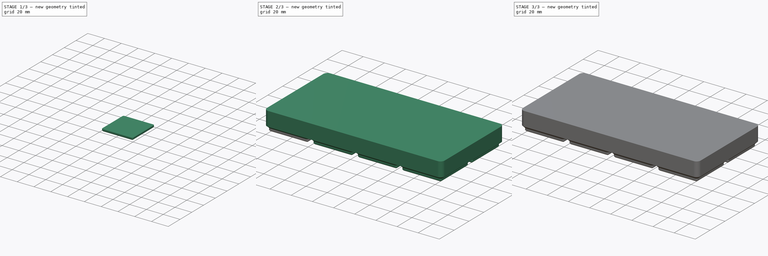
[diagram: build sequence overview — one tinted view per stage of 3, left to right]
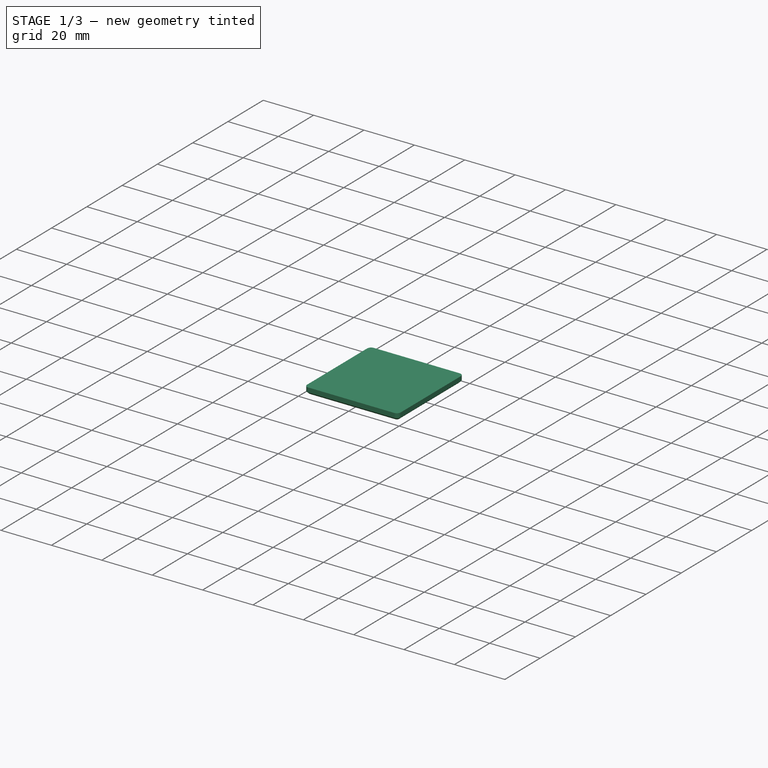
[diagram: stage 1 of 3 — iso view after this stage's code; geometry added in this stage tinted green]
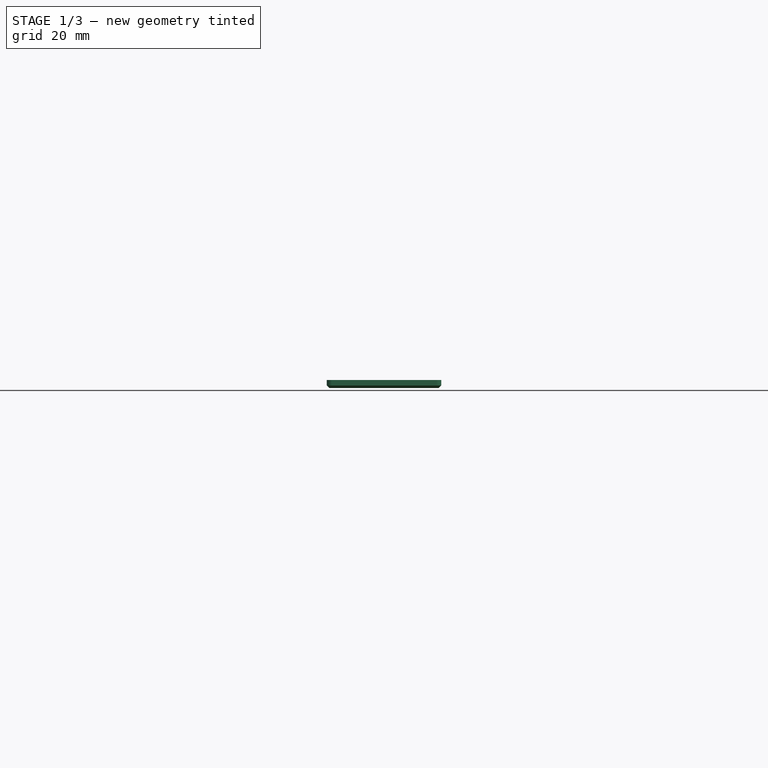
[diagram: stage 1 of 3 — front view after this stage's code; geometry added in this stage tinted green]
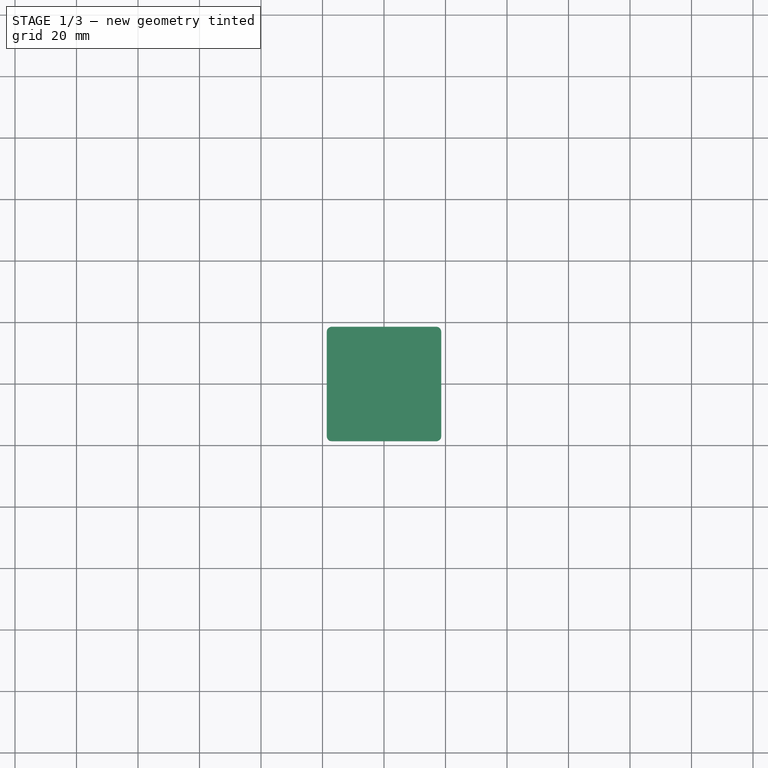
[diagram: stage 1 of 3 — top view after this stage's code; geometry added in this stage tinted green]
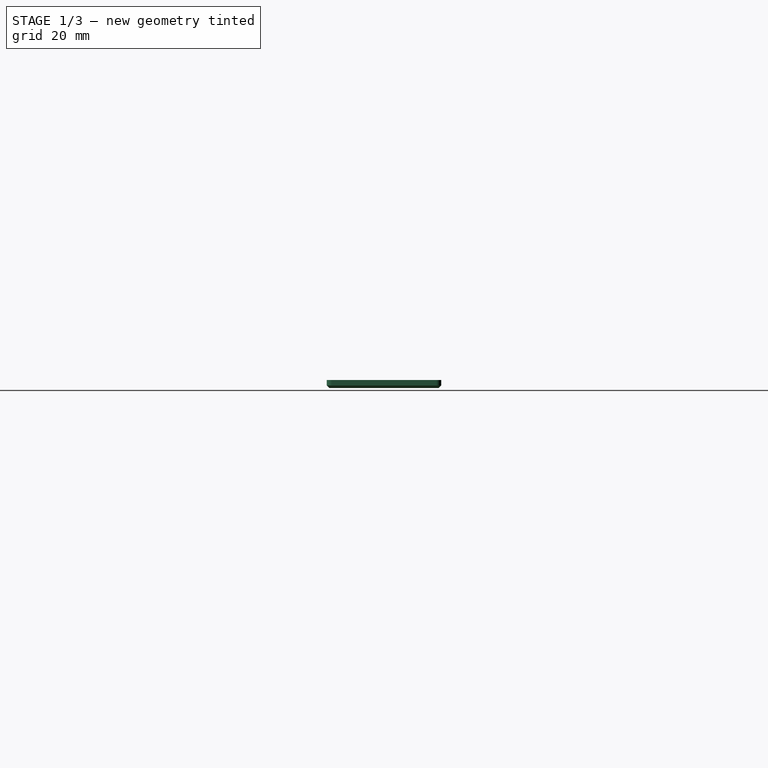
[diagram: stage 1 of 3 — right view after this stage's code; geometry added in this stage tinted green]
FCSTD DOCUMENT  (FreeCAD 1.1R20260223 (Git shallow))
Label: Gridfinity Magnifying Glasses
License: Creative Commons Attribution 4.0
objects: Sketcher::SketchObject×4, PartDesign::Pad×4, Part::Part2DObjectPython×3, App::Point×1, PartDesign::FeaturePython×1, PartDesign::Hole×1, PartDesign::Chamfer×1, PartDesign::Body×1
note: 32 computed .brp shape members not serialized (recipe doc carries the construction recipe); baked Part::Feature solids carry a one-line shape summary decoded from their .brp

FEATURE [App::Point] Origin002  label="Origin"
  Role = Origin
FEATURE [Sketcher::SketchObject] Sketch006
  ArcFitTolerance = 1e-06
  AttachmentSupport = -> [Origin]
  ExternalTypes = [0]
  FullyConstrained = true
  MakeInternals = false
  MapMode = 5
  expr: Constraints[10] = href(<<Tray>>.Width) * 42 - 16
  expr: Constraints[11] = href(<<Tray>>.Depth) * 42 - 16
  sketch-geometry (4):
    g0: Circle CenterX=-13 CenterY=-13 CenterZ=0 NormalX=0 NormalY=0 NormalZ=1 AngleXU=0 Radius=3.25
    g1: Circle CenterX=-13 CenterY=55 CenterZ=0 NormalX=0 NormalY=0 NormalZ=1 AngleXU=0 Radius=3.25
    g2: Circle CenterX=139 CenterY=55 CenterZ=0 NormalX=0 NormalY=0 NormalZ=1 AngleXU=0 Radius=3.25
    g3: Circle CenterX=139 CenterY=-13 CenterZ=0 NormalX=0 NormalY=0 NormalZ=1 AngleXU=0 Radius=3.25
  constraints (12):
    c: Equal(g2,g1)
    c: Equal(g1,g0)
    c: Equal(g0,g3)
    c: Diameter(g0) = 6.5
    c: Horizontal(g1,g2)
    c: Horizontal(g0,g3)
    c: Vertical(g1,g0)
    c: Vertical(g2,g3)
    c: DistanceY(g0,g-1) = 13
    c: DistanceX(g0,g-1) = 13
    c: DistanceX(g0,g3) = 152
    c: DistanceY(g0,g1) = 68
FEATURE [Sketcher::SketchObject] Sketch
  ArcFitTolerance = 1e-06
  AttachmentSupport = -> [XY_Plane]
  ExternalTypes = [0]
  FullyConstrained = true
  MakeInternals = false
  MapMode = 5
  sketch-geometry (10):
    g0: LineSegment StartX=-17.8 StartY=17 StartZ=0 EndX=-17.8 EndY=-17 EndZ=0
    g1: LineSegment StartX=-17 StartY=-17.8 StartZ=0 EndX=17 EndY=-17.8 EndZ=0
    g2: LineSegment StartX=17.8 StartY=-17 StartZ=0 EndX=17.8 EndY=17 EndZ=0
    g3: LineSegment StartX=17 StartY=17.8 StartZ=0 EndX=-17 EndY=17.8 EndZ=0
    g4: ArcOfCircle CenterX=-17 CenterY=17 CenterZ=0 NormalX=0 NormalY=0 NormalZ=1 AngleXU=0 Radius=0.8 StartAngle=1.5708 EndAngle=3.14159
    g5: ArcOfCircle CenterX=-17 CenterY=-17 CenterZ=0 NormalX=0 NormalY=0 NormalZ=1 AngleXU=0 Radius=0.8 StartAngle=3.14159 EndAngle=4.71239
    g6: ArcOfCircle CenterX=17 CenterY=-17 CenterZ=0 NormalX=0 NormalY=0 NormalZ=1 AngleXU=0 Radius=0.8 StartAngle=4.71239 EndAngle=6.28319
    g7: ArcOfCircle CenterX=17 CenterY=17 CenterZ=0 NormalX=0 NormalY=0 NormalZ=1 AngleXU=0 Radius=0.8 StartAngle=9.76e-14 EndAngle=1.5708
    g8: GeomPoint [constr] X=-17.8 Y=17.8 Z=0
    g9: GeomPoint [constr] X=17.8 Y=-17.8 Z=0
  constraints (23):
    c: Tangent(g0,g4) = -1.5708
    c: Tangent(g0,g5) = -1.5708
    c: Tangent(g1,g5) = -1.5708
    c: Tangent(g1,g6) = -1.5708
    c: Tangent(g2,g6) = -1.5708
    c: Tangent(g2,g7) = -1.5708
    c: Tangent(g3,g7) = -1.5708
    c: Tangent(g3,g4) = -1.5708
    c: Vertical(g0)
    c: Vertical(g2)
    c: Horizontal(g1)
    c: Horizontal(g3)
    c: Equal(g4,g5)
    c: Equal(g5,g6)
    c: Equal(g6,g7)
    c: PointOnObject(g8,g0)
    c: PointOnObject(g8,g3)
    c: PointOnObject(g9,g1)
    c: PointOnObject(g9,g2)
    c: Symmetric(g8,g9,g-1)
    c: Equal(g3,g2)
    c: DistanceY(g9,g8) = 35.6
    c: Diameter(g5) = 1.6
FEATURE [PartDesign::Pad] Pad  label="Base pad 1"
  Direction = (0,0,1)
  Length = 0.8
  Length2 = 10
  Profile = -> Sketch
  ReferenceAxis = -> Sketch [N_Axis]
  SideType = 0
  Suppressed = false
  TaperAngle = 45
  Type = 0
  Type2 = 0
FEATURE [PartDesign::Pad] Pad001  label="Base pad 2"
  BaseFeature = -> Pad
  Direction = (0,0,1)
  Length = 1.8
  Length2 = 10
  Profile = -> Pad [Edge3,Edge24,Edge22,Edge19,Edge16,Edge13,Edge10,Edge7]
  SideType = 0
  Suppressed = false
  Type = 0
  Type2 = 0
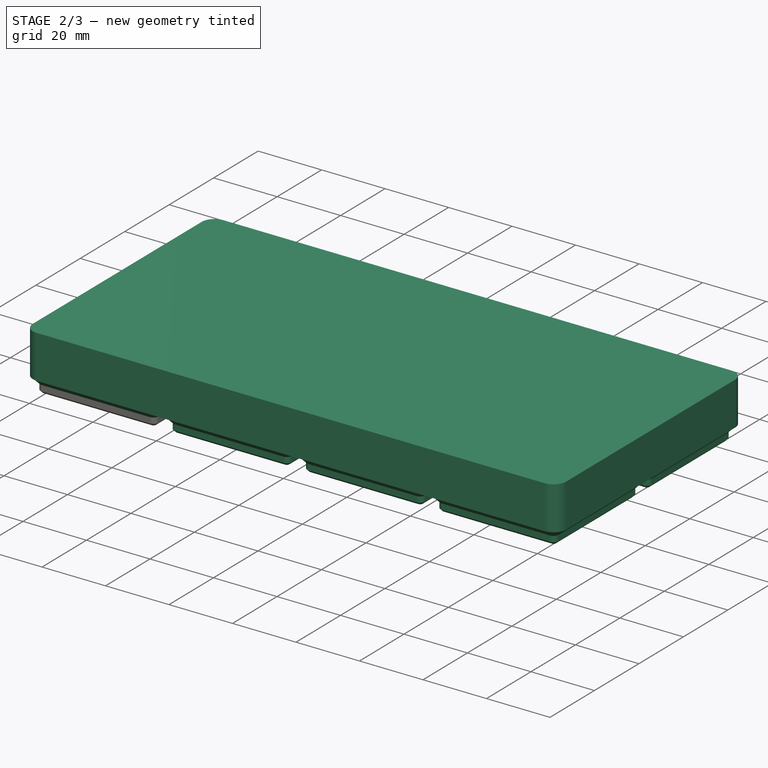
[diagram: stage 2 of 3 — iso view after this stage's code; geometry added in this stage tinted green]
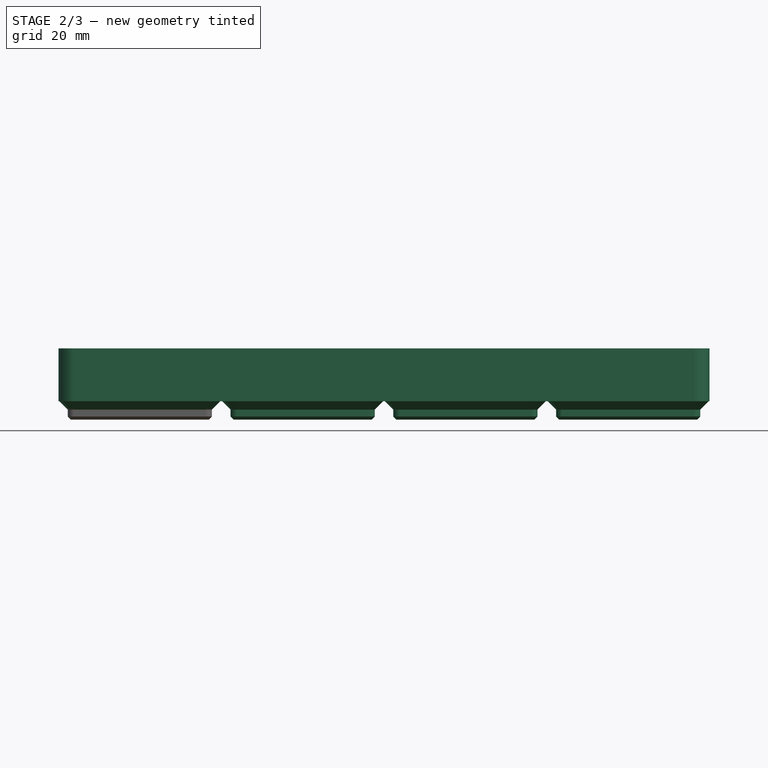
[diagram: stage 2 of 3 — front view after this stage's code; geometry added in this stage tinted green]
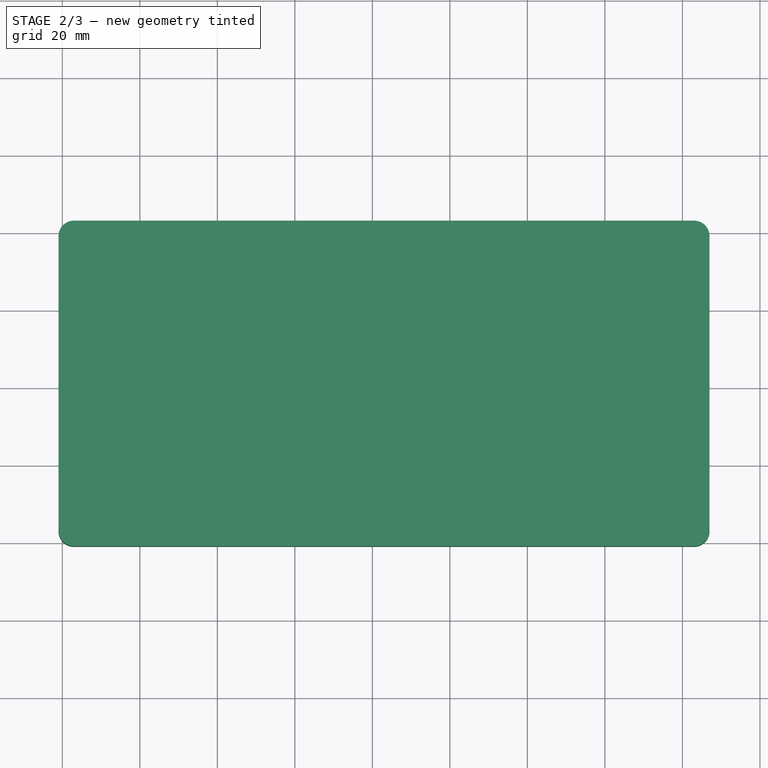
[diagram: stage 2 of 3 — top view after this stage's code; geometry added in this stage tinted green]
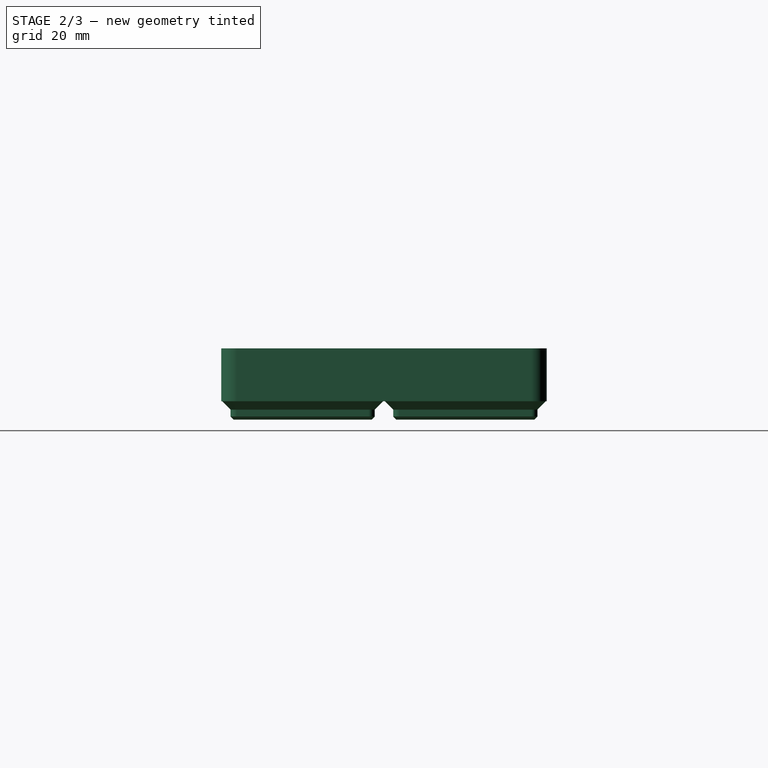
[diagram: stage 2 of 3 — right view after this stage's code; geometry added in this stage tinted green]
FEATURE [PartDesign::Pad] Pad002  label="Base pad 3"
  BaseFeature = -> Pad001
  Direction = (0,0,1)
  Length = 2.15
  Length2 = 10
  Profile = -> Pad001 [Edge16,Edge31,Edge32,Edge33,Edge34,Edge35,Edge36,Edge29]
  SideType = 0
  Suppressed = false
  TaperAngle = 45
  Type = 0
  Type2 = 0
FEATURE [Sketcher::SketchObject] Sketch001
  ArcFitTolerance = 1e-06
  AttachmentSupport = -> [Pad002]
  ExternalTypes = [0]
  FullyConstrained = true
  MakeInternals = false
  MapMode = 5
  Placement = pos=(0,0,4.75) rot=(0,0,1;0rad)
  expr: Constraints[23] = href(<<Tray>>.Width) * 42
  expr: Constraints[24] = href(<<Tray>>.Depth) * 42
  sketch-geometry (8):
    g0: ArcOfCircle CenterX=-17 CenterY=-17 CenterZ=0 NormalX=0 NormalY=0 NormalZ=1 AngleXU=0 Radius=4 StartAngle=3.14159 EndAngle=4.71239
    g1: LineSegment StartX=-21 StartY=-17 StartZ=0 EndX=-21 EndY=59 EndZ=0
    g2: LineSegment StartX=-17 StartY=-21 StartZ=0 EndX=143 EndY=-21 EndZ=0
    g3: ArcOfCircle CenterX=-17 CenterY=59 CenterZ=0 NormalX=0 NormalY=0 NormalZ=1 AngleXU=0 Radius=4 StartAngle=1.5708 EndAngle=3.14159
    g4: ArcOfCircle CenterX=143 CenterY=-17 CenterZ=0 NormalX=0 NormalY=0 NormalZ=1 AngleXU=0 Radius=4 StartAngle=4.71239 EndAngle=6.28319
    g5: LineSegment StartX=-17 StartY=63 StartZ=0 EndX=143 EndY=63 EndZ=0
    g6: ArcOfCircle CenterX=143 CenterY=59 CenterZ=0 NormalX=0 NormalY=0 NormalZ=1 AngleXU=0 Radius=4 StartAngle=0 EndAngle=1.5708
    g7: LineSegment StartX=147 StartY=59 StartZ=0 EndX=147 EndY=-17 EndZ=0
  constraints (28):
    c: Vertical(g0,g0)
    c: Horizontal(g0,g0)
    c: Coincident(g1,g0)
    c: Vertical(g1)
    c: Coincident(g2,g0)
    c: Horizontal(g2)
    c: Coincident(g3,g1)
    c: Coincident(g4,g2)
    c: Vertical(g4,g2)
    c: Horizontal(g4,g4)
    c: Horizontal(g1,g3)
    c: Vertical(g3,g3)
    c: Equal(g0,g3)
    c: Equal(g0,g4)
    c: Coincident(g5,g3)
    c: Horizontal(g5)
    c: Vertical(g5,g2)
    c: Coincident(g6,g5)
    c: Vertical(g5,g6)
    c: Horizontal(g6,g6)
    c: Coincident(g7,g6)
    c: Coincident(g7,g4)
    c: Equal(g0,g6)
    c: DistanceX(g0,g4) = 168
    c: DistanceY(g2,g5) = 84
    c: DistanceX(g0,g-1) = 21
    c: DistanceY(g0,g-1) = 21
    c: Radius(g0) = 4
FEATURE [Part::Part2DObjectPython] LinearArray  label="LinearArrayX"  # Draft 2D object (typed FeaturePython)
  Alignment = 0
  AttacherType = Attacher::AttachEngine3D
  CellStart = A1
  Count = 4
  Dir = (1,0,0)
  DirIsDriven = true
  DistributionLaw = 0
  DrivenProperty = 1
  EndInclusive = true
  ExposePlacement = false
  GeneratorMode = 1
  Link = -> Pad002
  LinkSubelement = Edge6
  MarkerShape = 1
  MarkerSize = 5
  NumElements = 4
  OrientMode = 1
  Point = (-17,-17.8,0)
  PointIsDriven = true
  Reverse = false
  SpanEnd = 34
  SpanStart = 0
  Step = 42
  SubLink = -> Pad002 [Edge6]
  Type = lattice2LinearArray.LinearArray
  VSGVersion = 1
  Values = 0.0 | 42.0 | 84.0 | 126.0
  ValuesSource = 2
  isLattice = 1
  expr: Count = href(<<Tray>>.Width)
FEATURE [Part::Part2DObjectPython] LinearArray001  label="LinearArrayY"  # Draft 2D object (typed FeaturePython)
  Alignment = 0
  AttacherType = Attacher::AttachEngine3D
  CellStart = A1
  Count = 2
  Dir = (0,1,0)
  DirIsDriven = true
  DistributionLaw = 0
  DrivenProperty = 1
  EndInclusive = true
  ExposePlacement = false
  GeneratorMode = 1
  Link = -> Pad002
  LinkSubelement = Edge1
  MarkerShape = 1
  MarkerSize = 5
  NumElements = 2
  OrientMode = 1
  Point = (-17.8,-17,0)
  PointIsDriven = true
  Reverse = true
  SpanEnd = 34
  SpanStart = 0
  Step = 42
  SubLink = -> Pad002 [Edge1]
  Type = lattice2LinearArray.LinearArray
  VSGVersion = 1
  Values = 0.0 | 42.0
  ValuesSource = 2
  isLattice = 1
  expr: Count = href(<<Tray>>.Depth)
FEATURE [Part::Part2DObjectPython] Populate  label="Gridfinity array"  # Draft 2D object (typed FeaturePython)
  AttacherType = Attacher::AttachEngine3D
  Copying = 0
  ExposePlacement = false
  MarkerShape = 1
  MarkerSize = 5
  NumElements = 8
  Object = -> LinearArray
  OutputCompounding = 0
  PlacementsTo = -> LinearArray001
  Referencing = 1
  Type = lattice2PopulateCopies.LatticePopulateCopies
  isLattice = 1
FEATURE [PartDesign::FeaturePython] LatticePattern  label="Base array"  # WARN: FeaturePython — macro-defined, semantics opaque (R4)
  AllowBaseFeature = true
  BaseFeature = -> Pad002
  Debug = false
  FeaturesToCopy = -> [Pad002,Pad,Pad001]
  IgnoreUnsupported = false
  PlacementsTo = -> Populate
  Referencing = 1
  Selfintersections = false
  SignOverride = 0
  SkipFirstInBody = false
  Suppressed = false
FEATURE [PartDesign::Pad] Pad003  label="Tray pad"
  BaseFeature = -> LatticePattern
  Direction = (0,0,1)
  Length = 13.65
  Length2 = 10
  Profile = -> Sketch001
  ReferenceAxis = -> Sketch001 [N_Axis]
  Refine = true
  SideType = 0
  Suppressed = false
  Type = 0
  Type2 = 0
  expr: Length = href(<<Tray>>.Height) * 7 - 0.35
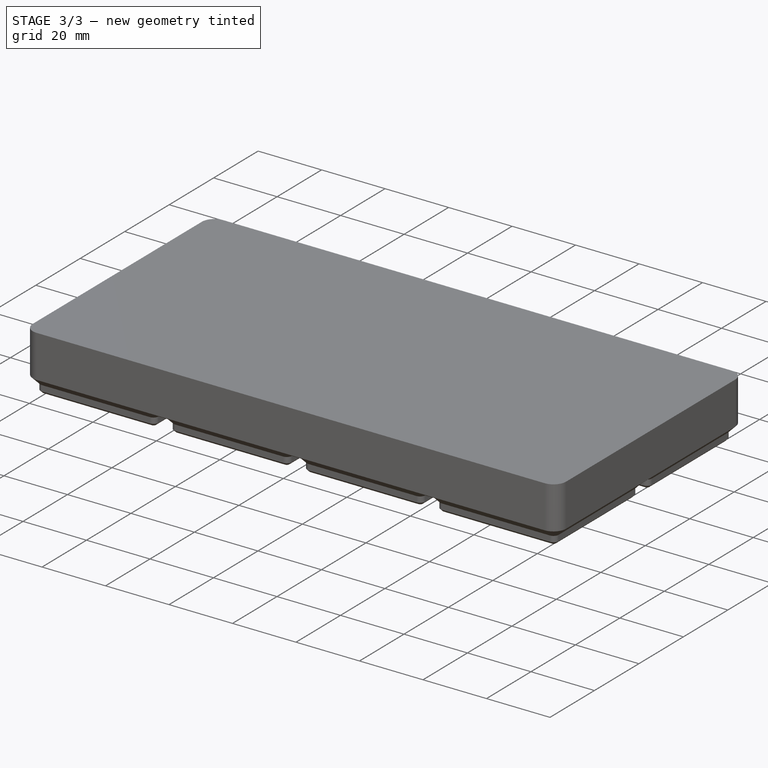
[diagram: stage 3 of 3 — iso view after this stage's code; geometry added in this stage tinted green]
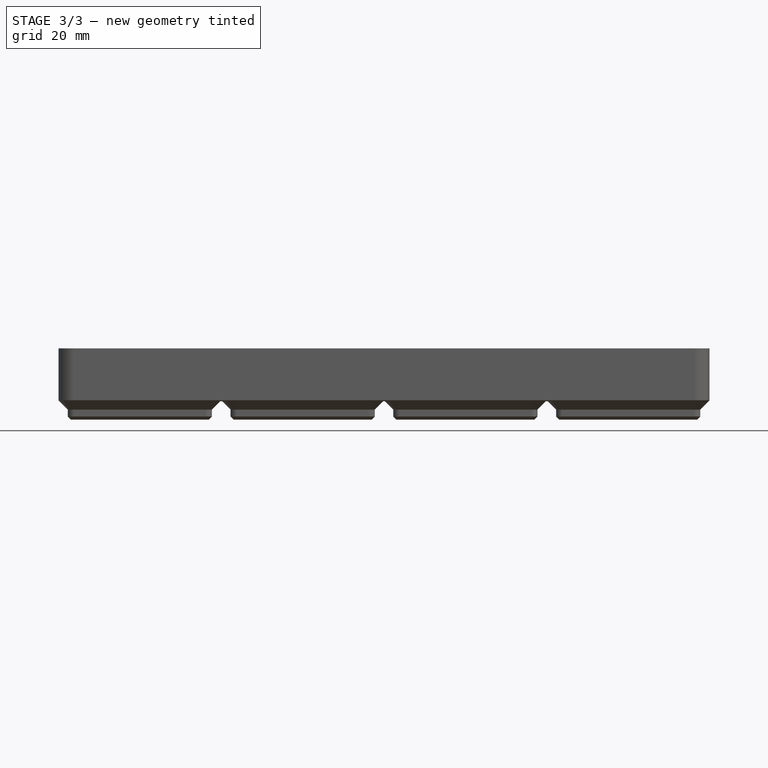
[diagram: stage 3 of 3 — front view after this stage's code; geometry added in this stage tinted green]
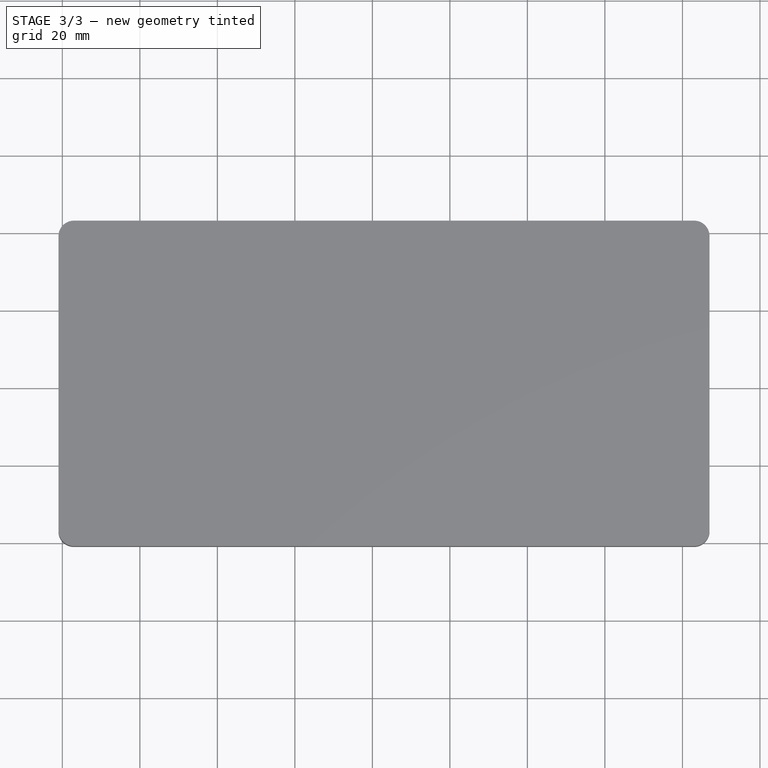
[diagram: stage 3 of 3 — top view after this stage's code; geometry added in this stage tinted green]
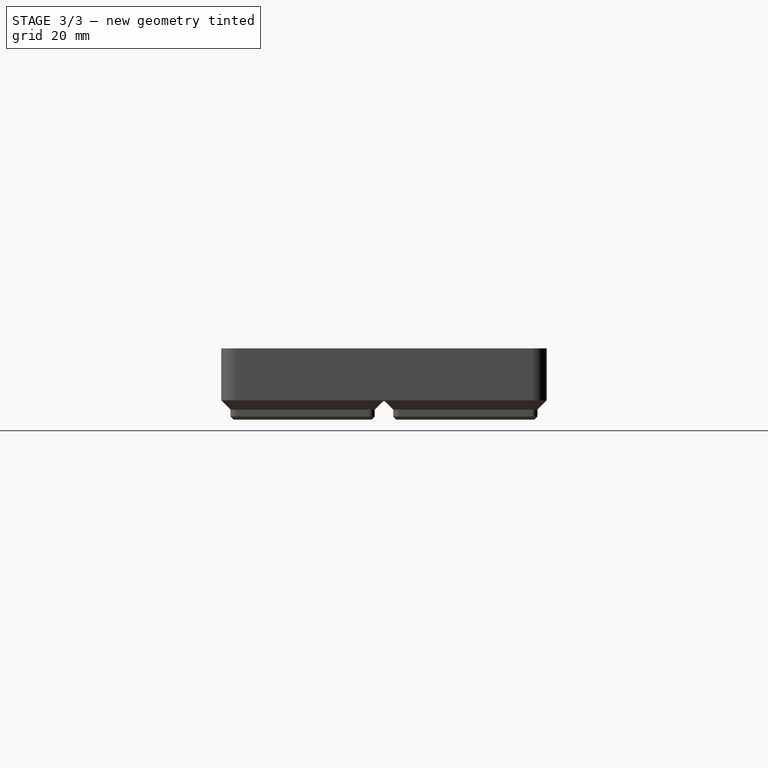
[diagram: stage 3 of 3 — right view after this stage's code; geometry added in this stage tinted green]
FEATURE [PartDesign::Hole] Hole  label="Magnet holes"
  BaseFeature = -> Pad003
  BaseProfileType = 7
  CustomThreadClearance = 0
  Depth = 2
  DepthType = 0
  Diameter = 6.5
  DrillForDepth = false
  DrillPoint = 1
  DrillPointAngle = 90
  HoleCutCountersinkAngle = 90
  HoleCutCustomValues = false
  HoleCutDepth = 0
  HoleCutDiameter = 0
  HoleCutType = 0
  ModelThread = false
  Profile = -> Sketch006
  Refine = true
  Reversed = true
  Suppressed = false
  Tapered = false
  TaperedAngle = 90
  ThreadClass = 0
  ThreadDepth = 2
  ThreadDepthType = 0
  ThreadDiameter = 6.5
  ThreadDirection = 0
  ThreadFit = 0
  ThreadSize = 0
  ThreadType = 0
  Threaded = false
  UseCustomThreadClearance = false
FEATURE [PartDesign::Chamfer] Chamfer001  label="Base chamfer"
  Angle = 45
  Base = -> Hole [Edge14]
  BaseFeature = -> Hole
  ChamferType = 0
  FlipDirection = false
  Refine = true
  Size = 0.249
  Size2 = 1
  SupportTransform = false
  Suppressed = false
  UseAllEdges = false
FEATURE [Sketcher::SketchObject] Sketch007
  ArcFitTolerance = 1e-06
  AttachmentSupport = -> [Chamfer001]
  ExternalGeometry = -> [Chamfer001]
  ExternalTypes = [0,0]
  FullyConstrained = false
  MakeInternals = false
  MapMode = 5
  Placement = pos=(0,0,18.4) rot=(0,0,1;0rad)
  sketch-geometry (7):
    g0: ArcOfCircle CenterX=64.5942 CenterY=82.8896 CenterZ=0 NormalX=0 NormalY=0 NormalZ=1 AngleXU=0 Radius=101.103 StartAngle=4.01291 EndAngle=5.35426
    g1: ArcOfCircle CenterX=1.11196 CenterY=7.44067 CenterZ=0 NormalX=0 NormalY=0 NormalZ=1 AngleXU=0 Radius=2.5 StartAngle=0.87132 EndAngle=4.01291
    g2: ArcOfCircle CenterX=123.627 CenterY=3.91072 CenterZ=0 NormalX=0 NormalY=0 NormalZ=1 AngleXU=0 Radius=2.5 StartAngle=5.35426 EndAngle=8.49585
    g3: ArcOfCircle CenterX=64.5942 CenterY=82.8896 CenterZ=0 NormalX=0 NormalY=0 NormalZ=1 AngleXU=0 Radius=96.1029 StartAngle=4.01291 EndAngle=5.35426
    g4: GeomPoint [constr] X=63 Y=63 Z=0
    g5: GeomPoint [constr] X=63 Y=-21 Z=0
    g6: GeomPoint [constr] X=120.301 Y=4.579 Z=0
  constraints (9):
    c: Coincident(g0,g3)
    c: Tangent(g3,g2) = 1.5708
    c: Tangent(g3,g1) = 1.5708
    c: Tangent(g0,g2) = -1.5708
    c: Tangent(g0,g1) = -1.5708
    c: Radius(g2) = 2.5
    c: Symmetric(g-4,g-4,g4)
    c: Symmetric(g-3,g-3,g5)
    c: PointOnObject(g6,g3)
FEATURE [PartDesign::Body] Body  label="Tray"
  AllowCompound = false
  Depth = 2
  Group = -> [Sketch,Pad,Pad001,Pad002,LinearArray,LinearArray001,Populate,LatticePattern,Sketch001,Pad003,Sketch006,Hole,Chamfer001,Sketch007]
  Height = 2
  InnerDepth = 7
  Origin = -> Origin
  Tip = -> Chamfer001
  Width = 4
  expr: InnerDepth = (Height - 1) * 7
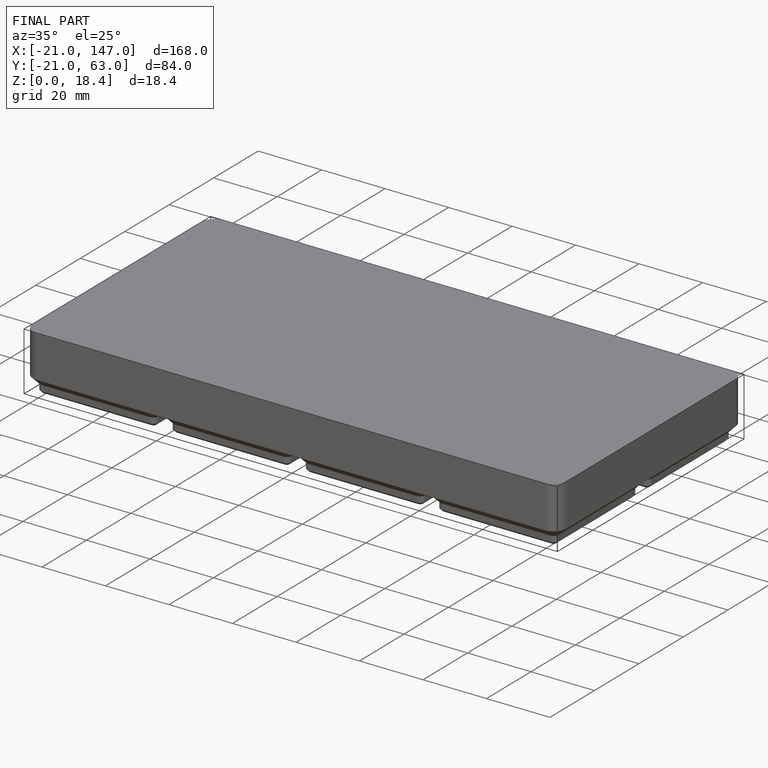
[diagram: finished part — iso view with bounding-box wireframe]
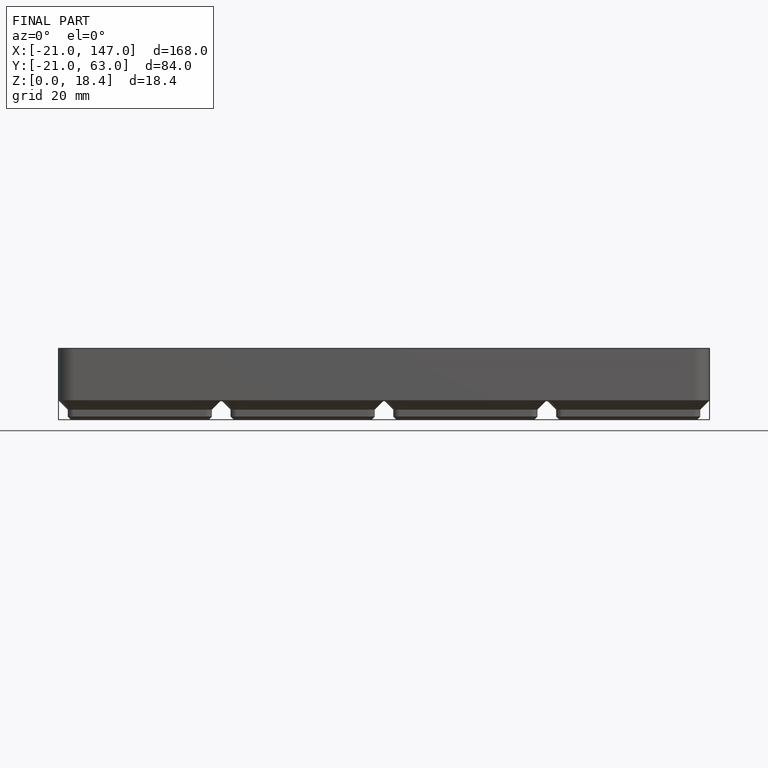
[diagram: finished part — front view with bounding-box wireframe]
